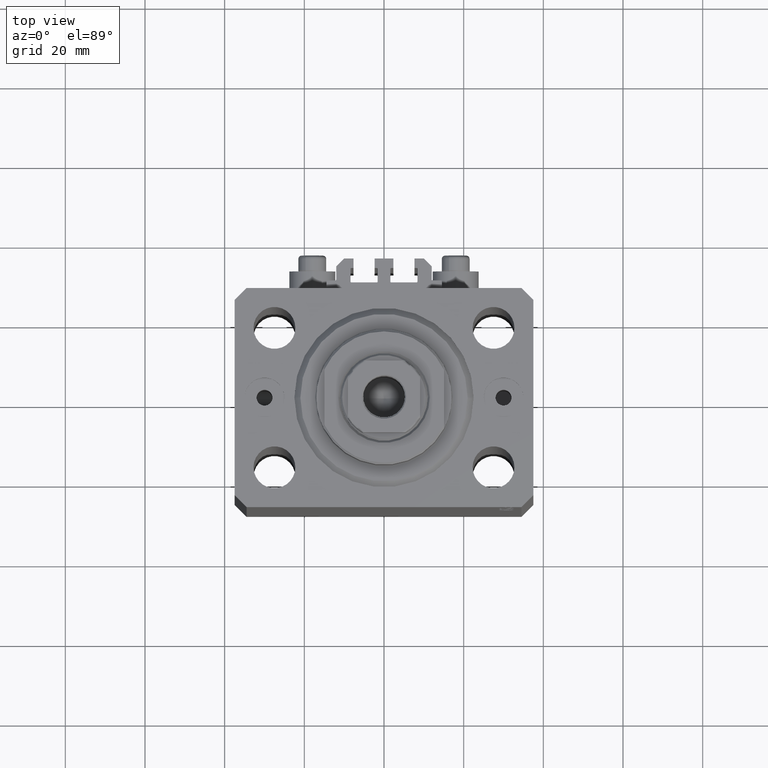
[diagram: clean part render]
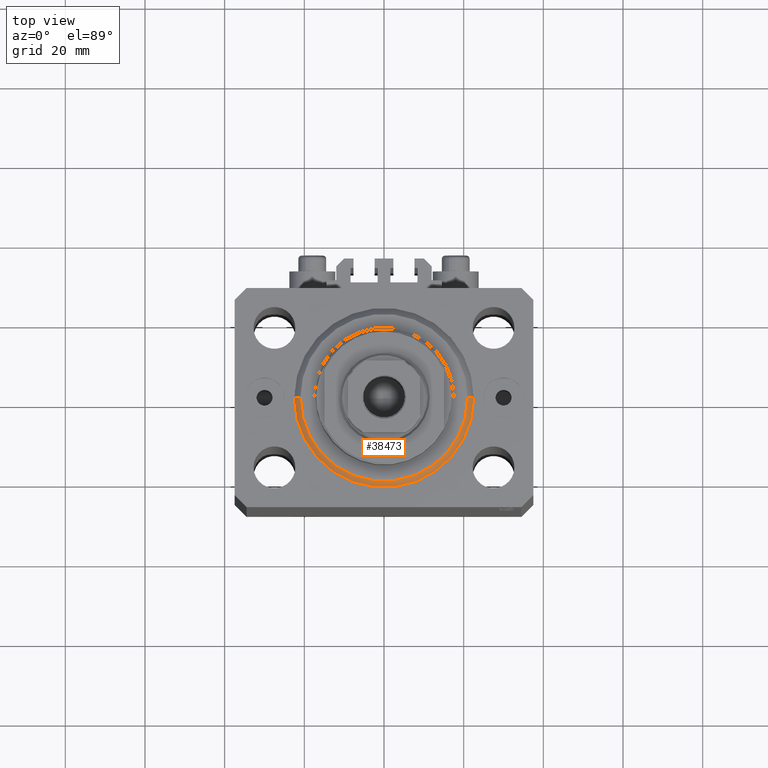
[diagram: same view with one face highlighted and labeled with its STEP entity id]
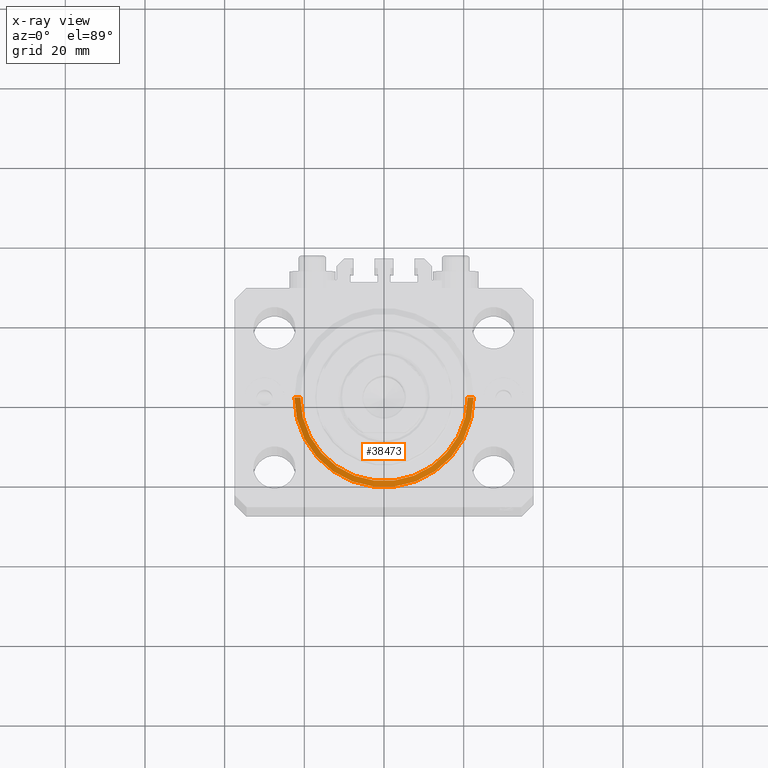
[diagram: x-ray of the same camera — body ghosted, the highlighted face saturated]
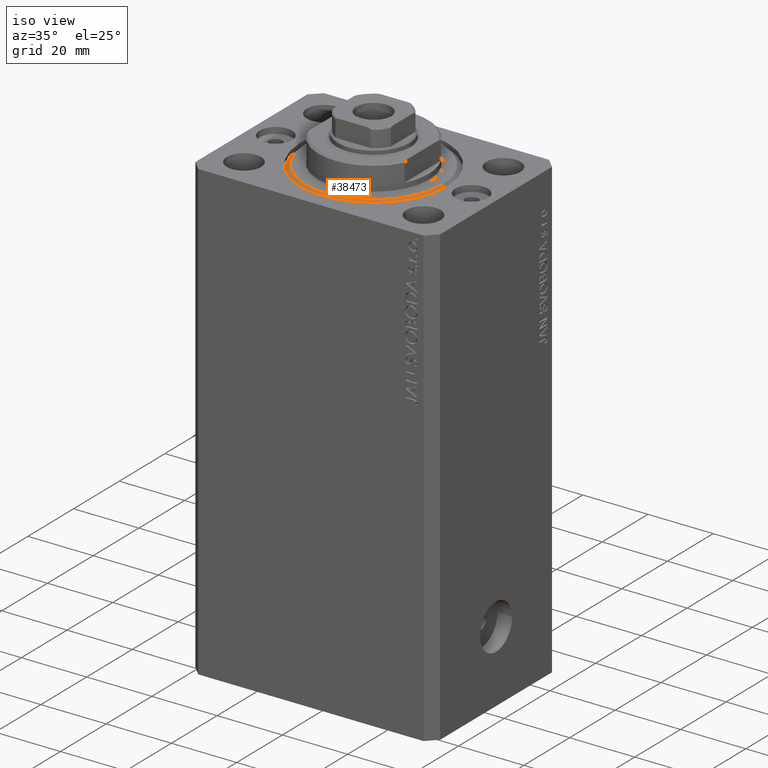
[diagram: same view with one face highlighted and labeled with its STEP entity id]
A machine part, top view. The second image highlights one B-rep face of the part: STEP entity #38473.
The next image is the same camera in x-ray: the body ghosted, the highlighted face saturated — about 0% of this face is hidden behind the body in this view.
A second angle (iso view) of the same face is appended — the face is thin or edge-on in the first view.
In plain terms, the highlighted conical surface has half-angle 45 deg.
Its self-contained STEP definition (entity closure, byte-faithful):
#50 = EDGE_CURVE ( 'NONE', #27180, #24437, #39128, .T. ) ;
#1122 = CARTESIAN_POINT ( 'NONE',  ( 20.99999999999995381, 0.000000000000000000, 0.000000000000000000 ) ) ;
#2653 = CONICAL_SURFACE ( 'NONE', #29342, 22.50000000000000355, 0.7853981633974517207 ) ;
#3337 = ORIENTED_EDGE ( 'NONE', *, *, #19215, .F. ) ;
#5139 = DIRECTION ( 'NONE',  ( 1.000000000000000000, 0.000000000000000000, 0.000000000000000000 ) ) ;
#8608 = ORIENTED_EDGE ( 'NONE', *, *, #50, .F. ) ;
#10936 = AXIS2_PLACEMENT_3D ( 'NONE', #39503, #13223, #38793 ) ;
#12219 = VERTEX_POINT ( 'NONE', #38289 ) ;
#13223 = DIRECTION ( 'NONE',  ( -0.000000000000000000, -0.000000000000000000, -1.000000000000000000 ) ) ;
#15700 = CIRCLE ( 'NONE', #42395, 22.50000000000000355 ) ;
#18126 = ORIENTED_EDGE ( 'NONE', *, *, #21531, .T. ) ;
#19127 = CARTESIAN_POINT ( 'NONE',  ( -20.99999999999995381, 2.663606788145490261E-15, 0.000000000000000000 ) ) ;
#19215 = EDGE_CURVE ( 'NONE', #24437, #43020, #29607, .T. ) ;
#19962 = DIRECTION ( 'NONE',  ( 0.7071067811865500152, 0.000000000000000000, 0.7071067811865451302 ) ) ;
#20197 = CARTESIAN_POINT ( 'NONE',  ( 22.50000000000000355, 0.000000000000000000, 1.500000000000039524 ) ) ;
#21021 = ORIENTED_EDGE ( 'NONE', *, *, #42130, .F. ) ;
#21477 = DIRECTION ( 'NONE',  ( 1.000000000000000000, 0.000000000000000000, 0.000000000000000000 ) ) ;
#21531 = EDGE_CURVE ( 'NONE', #27180, #12219, #22366, .T. ) ;
#22366 = LINE ( 'NONE', #20197, #45789 ) ;
#24437 = VERTEX_POINT ( 'NONE', #19127 ) ;
#25064 = CARTESIAN_POINT ( 'NONE',  ( 0.000000000000000000, 0.000000000000000000, 1.500000000000039524 ) ) ;
#26404 = CARTESIAN_POINT ( 'NONE',  ( 0.000000000000000000, 0.000000000000000000, 1.500000000000039524 ) ) ;
#27180 = VERTEX_POINT ( 'NONE', #1122 ) ;
#29342 = AXIS2_PLACEMENT_3D ( 'NONE', #25064, #43465, #21477 ) ;
#29607 = LINE ( 'NONE', #40354, #46581 ) ;
#34766 = EDGE_LOOP ( 'NONE', ( #3337, #8608, #18126, #21021 ) ) ;
#37245 = DIRECTION ( 'NONE',  ( -0.7071067811865500152, 8.659560562354962440E-17, 0.7071067811865451302 ) ) ;
#37398 = DIRECTION ( 'NONE',  ( -0.000000000000000000, -0.000000000000000000, 1.000000000000000000 ) ) ;
#38289 = CARTESIAN_POINT ( 'NONE',  ( 22.50000000000000355, 2.755455298081544383E-15, 1.500000000000039524 ) ) ;
#38473 = ADVANCED_FACE ( 'NONE', ( #43231 ), #2653, .T. ) ;
#38793 = DIRECTION ( 'NONE',  ( 1.000000000000000000, 0.000000000000000000, 0.000000000000000000 ) ) ;
#39128 = CIRCLE ( 'NONE', #10936, 20.99999999999995381 ) ;
#39503 = CARTESIAN_POINT ( 'NONE',  ( 0.000000000000000000, 0.000000000000000000, 0.000000000000000000 ) ) ;
#40354 = CARTESIAN_POINT ( 'NONE',  ( -22.50000000000000355, 2.755455298081545172E-15, 1.500000000000039524 ) ) ;
#42130 = EDGE_CURVE ( 'NONE', #43020, #12219, #15700, .T. ) ;
#42395 = AXIS2_PLACEMENT_3D ( 'NONE', #26404, #37398, #5139 ) ;
#43020 = VERTEX_POINT ( 'NONE', #47017 ) ;
#43231 = FACE_OUTER_BOUND ( 'NONE', #34766, .T. ) ;
#43465 = DIRECTION ( 'NONE',  ( -0.000000000000000000, -0.000000000000000000, 1.000000000000000000 ) ) ;
#45789 = VECTOR ( 'NONE', #19962, 1000.000000000000114 ) ;
#46581 = VECTOR ( 'NONE', #37245, 1000.000000000000114 ) ;
#47017 = CARTESIAN_POINT ( 'NONE',  ( -22.50000000000000355, 0.000000000000000000, 1.500000000000039524 ) ) ;